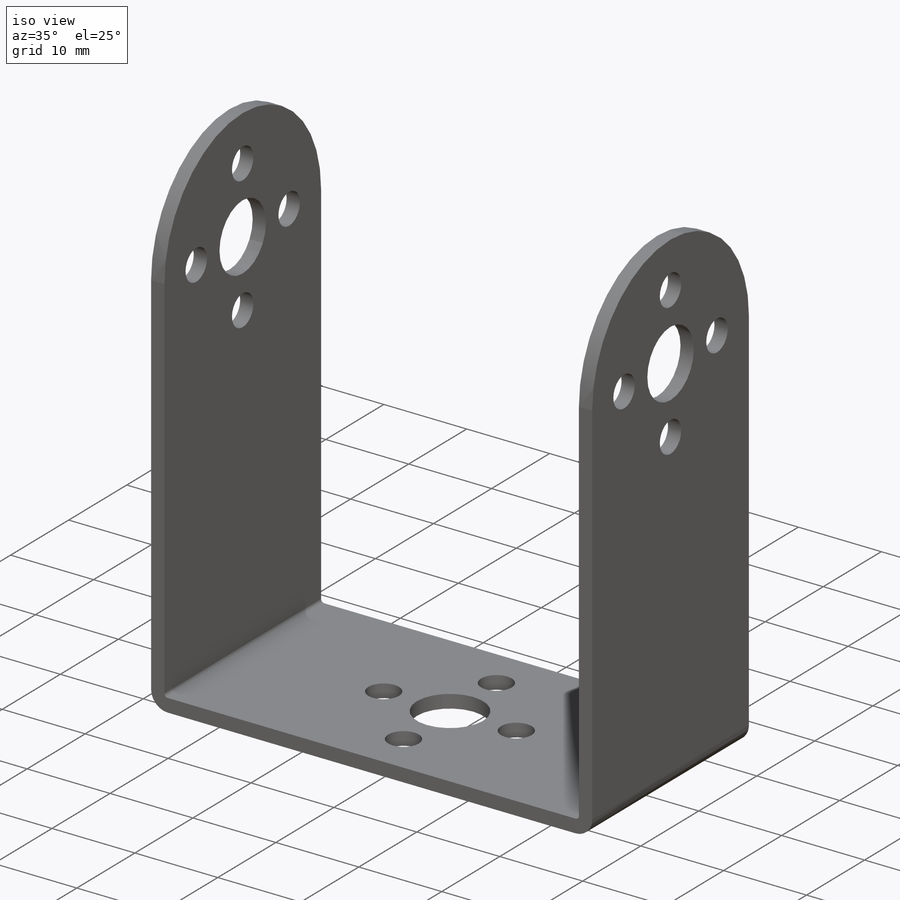
[diagram: iso view]
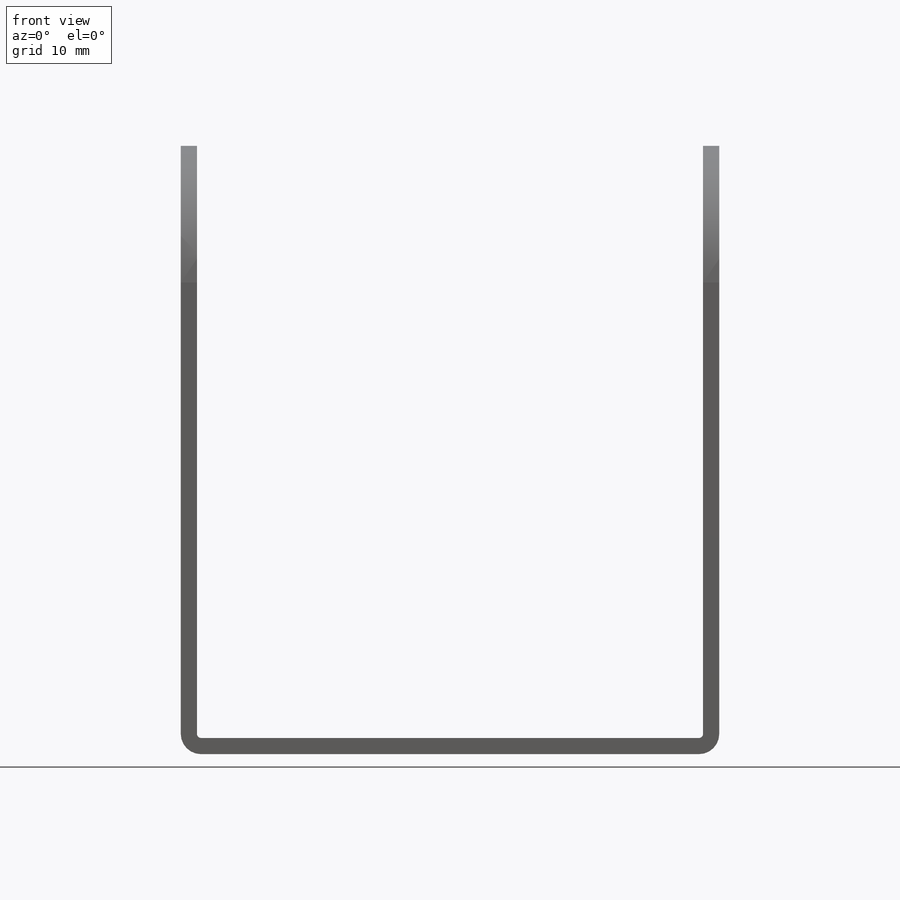
[diagram: front view]
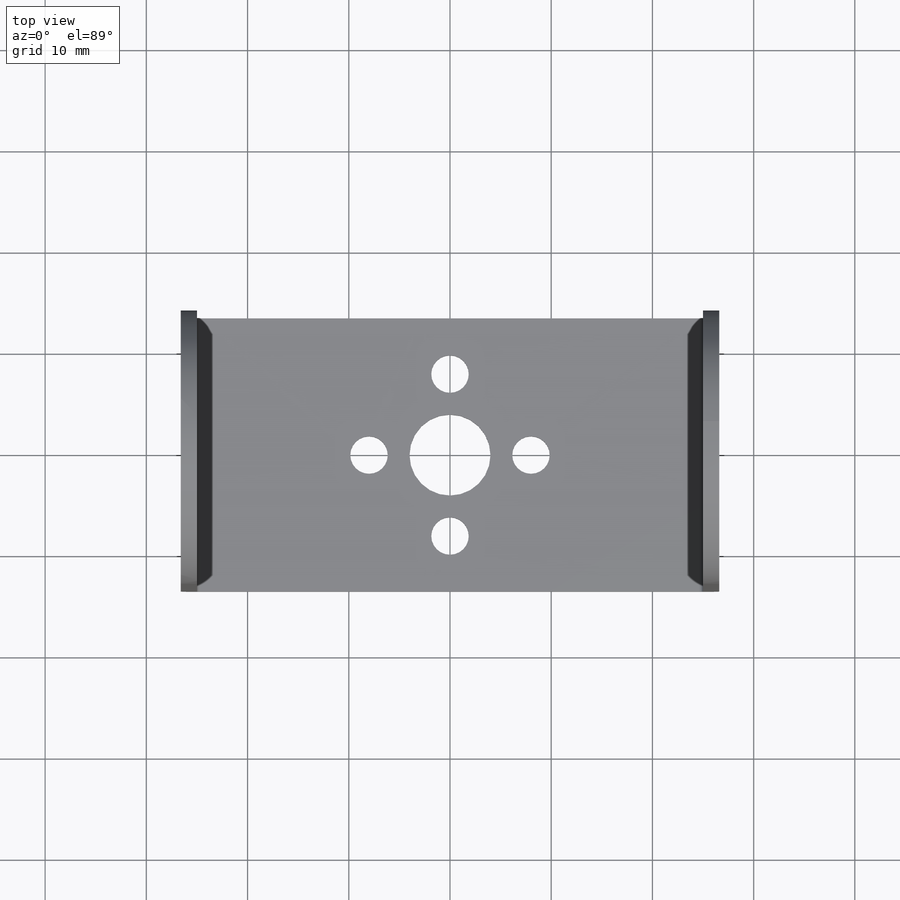
[diagram: top view]
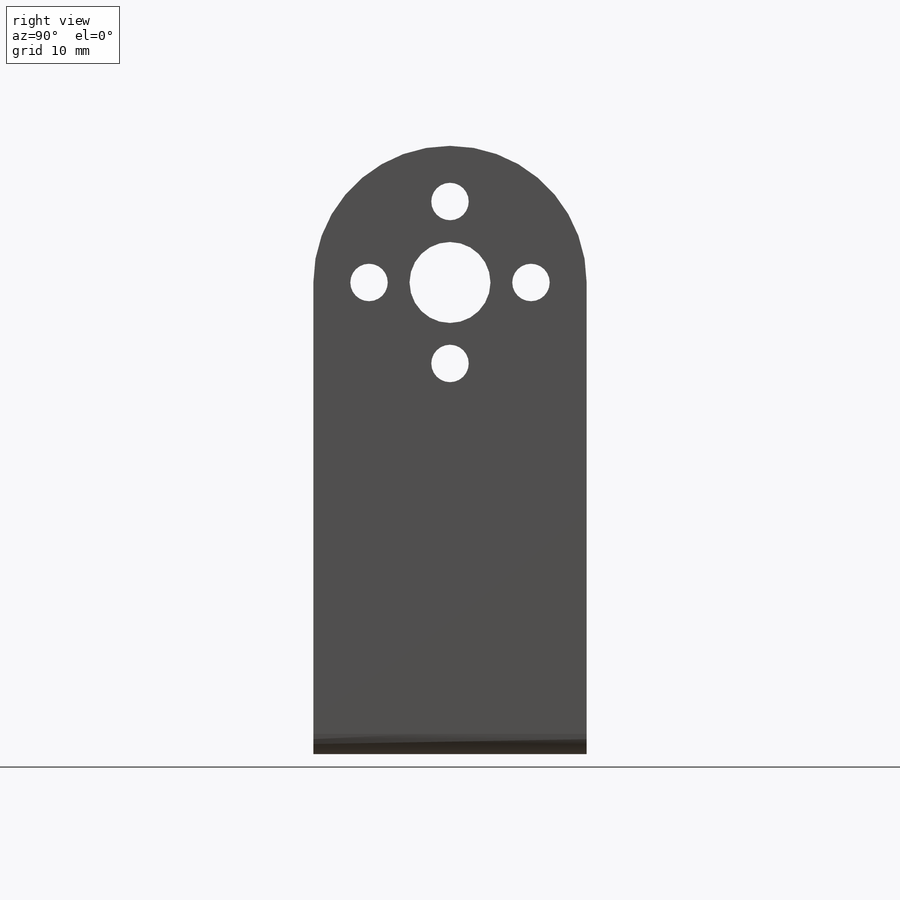
[diagram: right view]
SOLIDWORKS PART (.sldprt)
format: sldprt  version: not decoded by parser v0  size: 286,720 bytes
history: native  units: mm
features: sketch x12, hole x5, fillet x2, material x1, plane x1, extrude x1, cut_extrude x1 (+11 scaffold rows collapsed)
feature tree (34):
  scaffold x11  (default folders/planes/origin — collapsed)
  material  "2024 Alloy"
  plane  "Plane1"  Offset=26.6mm
  sketch  "Sketch1"
  extrude  "Boss-Extrude1"  Depth=53.2mm
  sketch  "Sketch2"  dims[D1=50.0mm D2=63.5mm]
  cut_extrude  "Cut-Extrude1"  [1 undecoded]
  hole  "Ø8.0 (8) Diameter Hole1"  Diameter=8mm Depth=1.6mm
  sketch  "Sketch4"
  sketch  "Sketch3"  dims[hole-wizard template sketch: 60 standard entries collapsed; hole parameters kept: c18.Thru Hole Depth=1.6mm]
  hole  "Ø3.7 (3.7) Diameter Hole1"  Diameter=3.7mm Depth=53.2mm
  sketch  "Sketch6"
  sketch  "Sketch5"  dims[hole-wizard template sketch: 60 standard entries collapsed; hole parameters kept: c18.Thru Hole Depth=53.2mm]
  hole  "Ø3.7 (3.7) Diameter Hole2"  Diameter=3.7mm Depth=1.6mm
  sketch  "Sketch8"
  sketch  "Sketch7"  dims[hole-wizard template sketch: 60 standard entries collapsed; hole parameters kept: c18.Thru Hole Depth=1.6mm]
  hole  "Ø8.0 (8) Diameter Hole2"  Diameter=8mm Depth=1.6mm
  sketch  "Sketch10"
  sketch  "Sketch9"  dims[hole-wizard template sketch: 60 standard entries collapsed; hole parameters kept: c18.Thru Hole Depth=1.6mm]
  hole  "Ø8.0 (8) Diameter Hole3"  Diameter=8mm Depth=1.6mm
  sketch  "Sketch12"
  sketch  "Sketch11"  dims[hole-wizard template sketch: 60 standard entries collapsed; hole parameters kept: c18.Thru Hole Depth=1.6mm]
  fillet  "Fillet1"  Radius=0.4mm
  fillet  "Fillet2"  Radius=2mm
decode coverage: 14 of 21 modeling features carry decoded parameters
note: ~ marks probable driven/reference dimensions
note: 1 parameter value undecoded
summary: Diameter pulled from absorbed wizard sketch
note: suppression state not decoded; provenance and decode notes live in map.json
